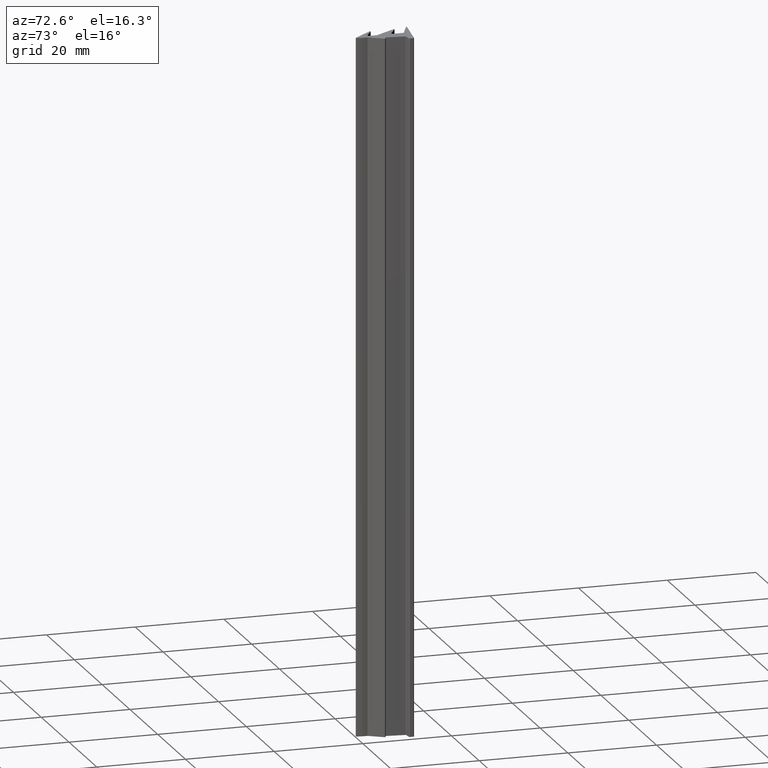
[diagram: clean part render]
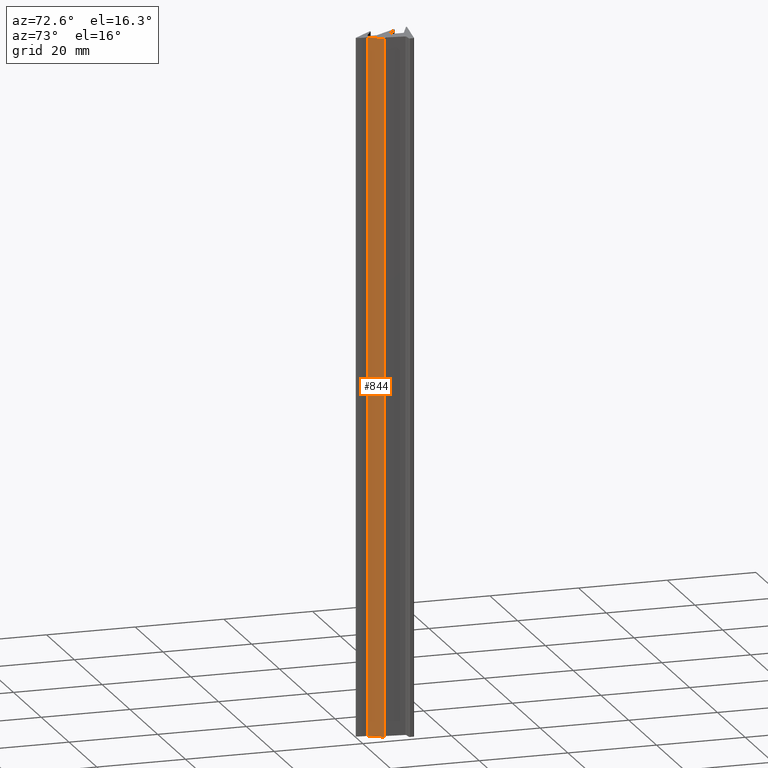
[diagram: same view with one face highlighted and labeled with its STEP entity id]
A machine part, auxiliary view. The second image highlights one B-rep face of the part: STEP entity #844.
In plain terms, the highlighted planar face has unit normal (0.8431, -0.5377, 0).
Its self-contained STEP definition (entity closure, byte-faithful):
#786=CARTESIAN_POINT('',(2.417487982992043,0.378996640894911,0.0));
#787=VERTEX_POINT('',#786);
#795=CARTESIAN_POINT('',(2.417487982992043,0.378996640894911,156.662099546738520));
#796=VERTEX_POINT('',#795);
#797=CARTESIAN_POINT('',(2.417487982992043,0.378996640894911,0.0));
#798=DIRECTION('',(0.0,0.0,1.0));
#799=VECTOR('',#798,156.662099546738520);
#800=LINE('',#797,#799);
#801=EDGE_CURVE('',#787,#796,#800,.T.);
#814=CARTESIAN_POINT('',(2.318454961865882,0.223702536033670,-7.833104977336927));
#815=DIRECTION('',(0.843145902326728,-0.537684840208134,0.0));
#816=DIRECTION('',(0.537684840208134,0.843145902326728,0.0));
#817=AXIS2_PLACEMENT_3D('',#814,#815,#816);
#818=PLANE('',#817);
#819=CARTESIAN_POINT('',(4.398148405514803,3.484878738118823,0.0));
#820=VERTEX_POINT('',#819);
#821=CARTESIAN_POINT('',(2.417487982992043,0.378996640894911,0.0));
#822=DIRECTION('',(0.537684840208141,0.843145902326724,0.0));
#823=VECTOR('',#822,3.683682846175258);
#824=LINE('',#821,#823);
#825=EDGE_CURVE('',#787,#820,#824,.T.);
#826=ORIENTED_EDGE('',*,*,#825,.T.);
#827=CARTESIAN_POINT('',(4.398148405514803,3.484878738118823,156.662099546738520));
#828=VERTEX_POINT('',#827);
#829=CARTESIAN_POINT('',(4.398148405514803,3.484878738118823,0.0));
#830=DIRECTION('',(0.0,0.0,1.0));
#831=VECTOR('',#830,156.662099546738520);
#832=LINE('',#829,#831);
#833=EDGE_CURVE('',#820,#828,#832,.T.);
#834=ORIENTED_EDGE('',*,*,#833,.T.);
#835=CARTESIAN_POINT('',(2.417487982992043,0.378996640894911,156.662099546738520));
#836=DIRECTION('',(0.537684840208141,0.843145902326724,0.0));
#837=VECTOR('',#836,3.683682846175258);
#838=LINE('',#835,#837);
#839=EDGE_CURVE('',#796,#828,#838,.T.);
#840=ORIENTED_EDGE('',*,*,#839,.F.);
#841=ORIENTED_EDGE('',*,*,#801,.F.);
#842=EDGE_LOOP('',(#826,#834,#840,#841));
#843=FACE_OUTER_BOUND('',#842,.T.);
#844=ADVANCED_FACE('',(#843),#818,.T.);